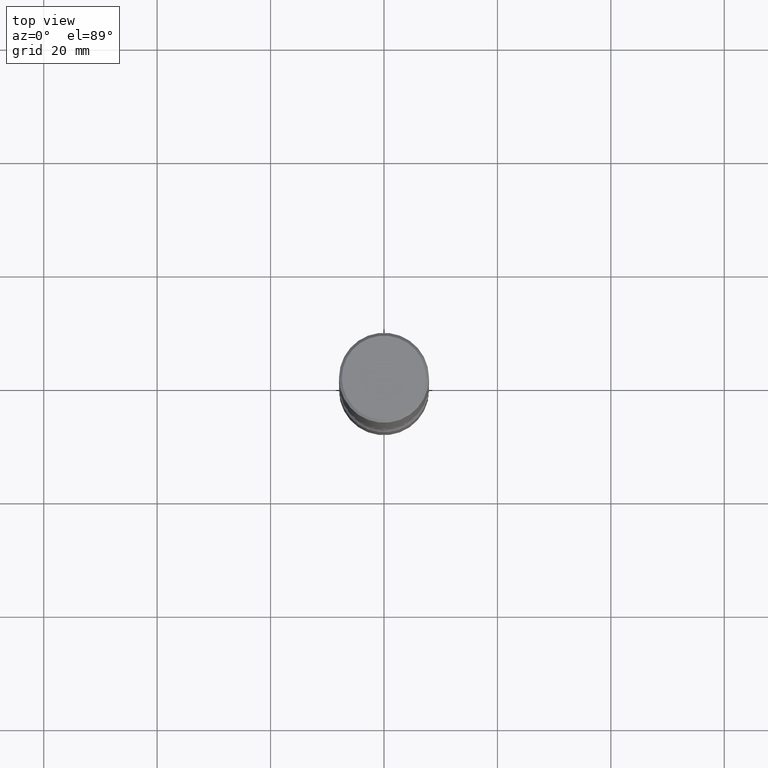
[diagram: clean part render]
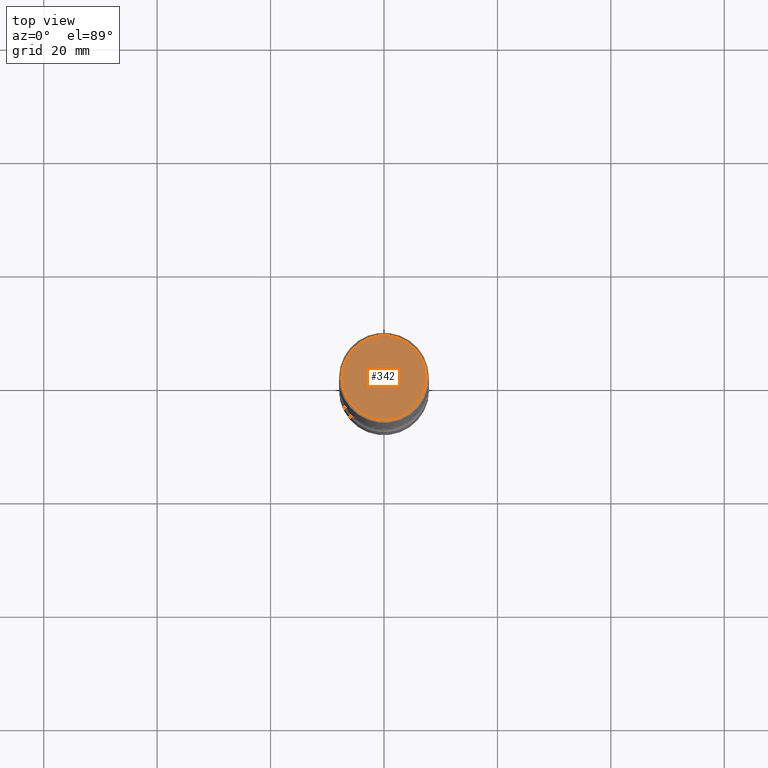
[diagram: same view with one face highlighted and labeled with its STEP entity id]
A machine part, top view. The second image highlights one B-rep face of the part: STEP entity #342.
In plain terms, the highlighted planar face has unit normal (0, -0, -1).
Its self-contained STEP definition (entity closure, byte-faithful):
#59 = DIRECTION ( 'NONE',  ( -2.445468806185136597E-29, 3.491481338843145583E-15, 1.000000000000000000 ) ) ;
#63 = AXIS2_PLACEMENT_3D ( 'NONE', #105, #59, #229 ) ;
#64 = AXIS2_PLACEMENT_3D ( 'NONE', #207, #252, #384 ) ;
#105 = CARTESIAN_POINT ( 'NONE',  ( -1.043851414335219820E-46, 1.490343170380447200E-32, 4.268512490100411279E-18 ) ) ;
#120 = DIRECTION ( 'NONE',  ( -1.000000000000000000, 6.982962677686265922E-15, -4.876176775795935793E-29 ) ) ;
#125 = CIRCLE ( 'NONE', #64, 0.2924999999999998157 ) ;
#139 = CARTESIAN_POINT ( 'NONE',  ( 0.2924999999999998157, -2.110215457714318748E-15, 4.268512490114932791E-18 ) ) ;
#140 = CARTESIAN_POINT ( 'NONE',  ( 2.042516583223231356E-15, 0.2924999999999998157, -1.019124035366569212E-15 ) ) ;
#146 = EDGE_CURVE ( 'NONE', #421, #182, #498, .T. ) ;
#182 = VERTEX_POINT ( 'NONE', #139 ) ;
#189 = AXIS2_PLACEMENT_3D ( 'NONE', #140, #358, #120 ) ;
#207 = CARTESIAN_POINT ( 'NONE',  ( -1.043851414335219820E-46, 1.490343170380447200E-32, 4.268512490100411279E-18 ) ) ;
#229 = DIRECTION ( 'NONE',  ( 1.000000000000000000, -6.982962677686266711E-15, 4.876067333457692840E-29 ) ) ;
#243 = EDGE_LOOP ( 'NONE', ( #300, #461 ) ) ;
#252 = DIRECTION ( 'NONE',  ( -2.445468806185136597E-29, 3.491481338843145583E-15, 1.000000000000000000 ) ) ;
#300 = ORIENTED_EDGE ( 'NONE', *, *, #146, .T. ) ;
#310 = FACE_OUTER_BOUND ( 'NONE', #243, .T. ) ;
#342 = ADVANCED_FACE ( 'NONE', ( #310 ), #485, .F. ) ;
#358 = DIRECTION ( 'NONE',  ( 2.438088387897960049E-29, -3.491481338843145188E-15, -1.000000000000000000 ) ) ;
#384 = DIRECTION ( 'NONE',  ( 1.000000000000000000, -6.982962677686266711E-15, 4.876067333457692840E-29 ) ) ;
#421 = VERTEX_POINT ( 'NONE', #434 ) ;
#434 = CARTESIAN_POINT ( 'NONE',  ( -0.2924999999999998157, 2.077431396611663005E-15, 4.268512490086005323E-18 ) ) ;
#435 = EDGE_CURVE ( 'NONE', #182, #421, #125, .T. ) ;
#461 = ORIENTED_EDGE ( 'NONE', *, *, #435, .T. ) ;
#485 = PLANE ( 'NONE',  #189 ) ;
#498 = CIRCLE ( 'NONE', #63, 0.2924999999999998157 ) ;